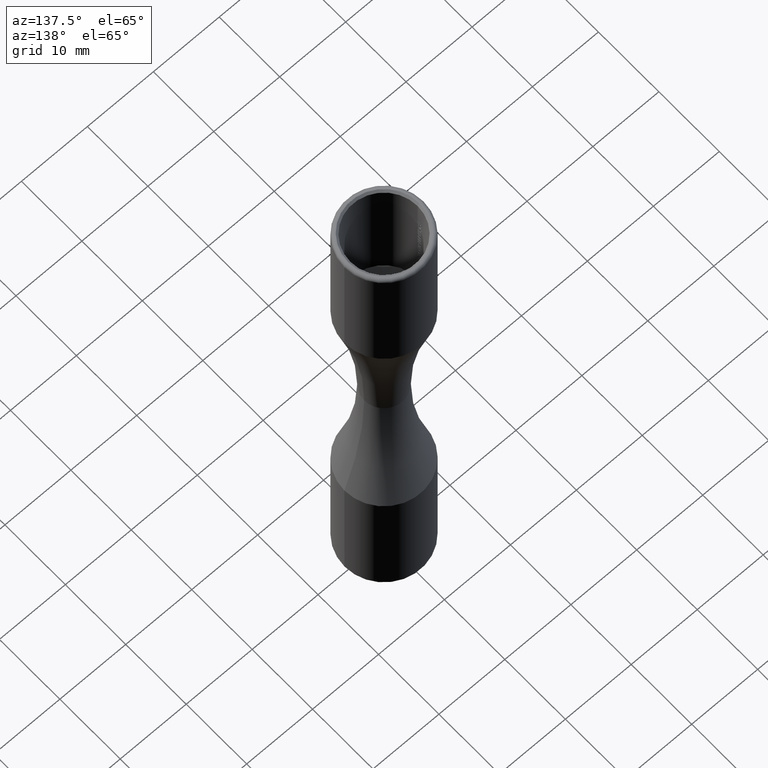
[diagram: clean part render]
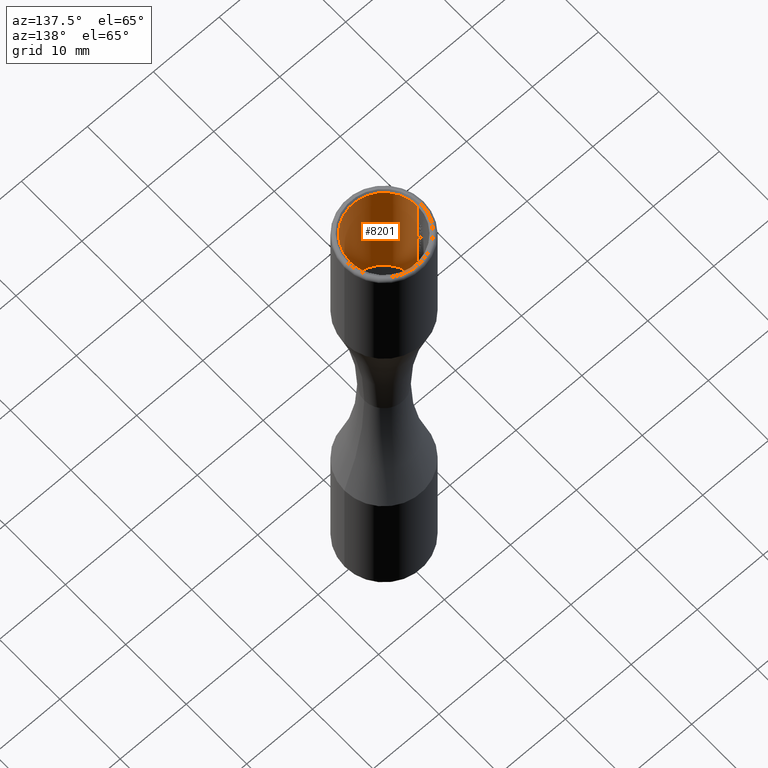
[diagram: same view with one face highlighted and labeled with its STEP entity id]
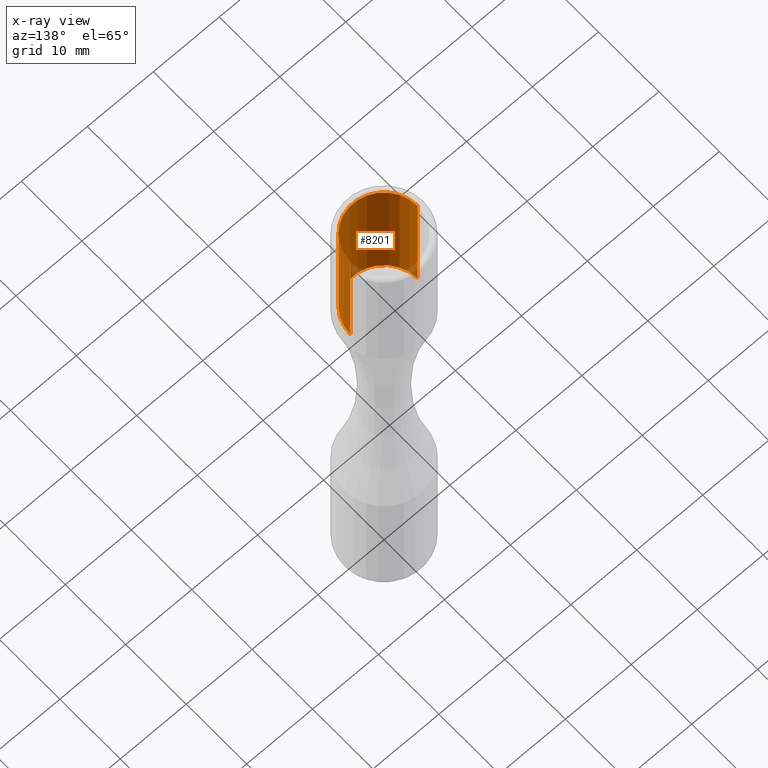
[diagram: x-ray of the same camera — body ghosted, the highlighted face saturated]
A machine part, auxiliary view. The second image highlights one B-rep face of the part: STEP entity #8201.
The next image is the same camera in x-ray: the body ghosted, the highlighted face saturated — about 3% of this face is hidden behind the body in this view.
In plain terms, the highlighted cylindrical surface (partial cylindrical patch) has radius 5.1 mm, axis along (-0, -0, -1).
Its self-contained STEP definition (entity closure, byte-faithful):
#50 = VERTEX_POINT ( 'NONE', #12882 ) ;
#70 = EDGE_CURVE ( 'NONE', #8140, #9770, #12805, .T. ) ;
#87 = ORIENTED_EDGE ( 'NONE', *, *, #4688, .T. ) ;
#102 = VERTEX_POINT ( 'NONE', #2305 ) ;
#127 = ORIENTED_EDGE ( 'NONE', *, *, #1081, .T. ) ;
#153 = ORIENTED_EDGE ( 'NONE', *, *, #251, .F. ) ;
#163 = CARTESIAN_POINT ( 'NONE',  ( 5.099999999999998757, -3.712238822376867849E-15, 39.70384577461581443 ) ) ;
#208 = ORIENTED_EDGE ( 'NONE', *, *, #8302, .T. ) ;
#213 = DIRECTION ( 'NONE',  ( -0.000000000000000000, -0.000000000000000000, -1.000000000000000000 ) ) ;
#217 = CARTESIAN_POINT ( 'NONE',  ( -5.099989847370640206, -0.01017628205128205329, 34.82124736716390601 ) ) ;
#251 = EDGE_CURVE ( 'NONE', #10592, #418, #2447, .T. ) ;
#284 = CARTESIAN_POINT ( 'NONE',  ( -5.099999999999997868, -0.01406212034365020291, 29.84169774693276622 ) ) ;
#373 = VECTOR ( 'NONE', #8218, 1000.000000000000000 ) ;
#375 = EDGE_CURVE ( 'NONE', #5786, #8140, #11714, .T. ) ;
#408 = CARTESIAN_POINT ( 'NONE',  ( -5.099999999999998757, -0.01322823460821048042, 25.05239048809283275 ) ) ;
#418 = VERTEX_POINT ( 'NONE', #1965 ) ;
#437 = ORIENTED_EDGE ( 'NONE', *, *, #9991, .F. ) ;
#451 = EDGE_CURVE ( 'NONE', #4348, #6367, #11434, .T. ) ;
#464 = ORIENTED_EDGE ( 'NONE', *, *, #12894, .T. ) ;
#486 = VERTEX_POINT ( 'NONE', #2320 ) ;
#508 = CARTESIAN_POINT ( 'NONE',  ( -5.099991187069258913, -0.009504872854565997106, 34.85000877338627845 ) ) ;
#518 = VECTOR ( 'NONE', #8897, 1000.000000000000000 ) ;
#535 = EDGE_CURVE ( 'NONE', #1542, #6367, #5367, .T. ) ;
#540 = CIRCLE ( 'NONE', #2431, 5.099999999999999645 ) ;
#551 = VERTEX_POINT ( 'NONE', #4716 ) ;
#557 = CARTESIAN_POINT ( 'NONE',  ( -5.099999999999997868, -0.01385719968823547268, 29.21539700328661127 ) ) ;
#559 = CARTESIAN_POINT ( 'NONE',  ( -5.099999999999998757, 0.000000000000000000, 31.18497558230813027 ) ) ;
#578 = CARTESIAN_POINT ( 'NONE',  ( -5.099962878056707005, -0.01947836442769352097, 27.35550670847737109 ) ) ;
#610 = CARTESIAN_POINT ( 'NONE',  ( -5.099989847370640206, -0.01017628205128205156, 33.87437612317351920 ) ) ;
#619 = CARTESIAN_POINT ( 'NONE',  ( -5.099999999999998757, -3.338601537426506144E-14, 32.01076392866190901 ) ) ;
#649 = VERTEX_POINT ( 'NONE', #1744 ) ;
#654 = ORIENTED_EDGE ( 'NONE', *, *, #10767, .F. ) ;
#705 = EDGE_CURVE ( 'NONE', #2140, #3022, #2911, .T. ) ;
#715 = CARTESIAN_POINT ( 'NONE',  ( -5.099961332391190538, -0.01986567834546732608, 25.08566958099810051 ) ) ;
#729 = ORIENTED_EDGE ( 'NONE', *, *, #10345, .F. ) ;
#771 = CARTESIAN_POINT ( 'NONE',  ( -5.099999999999998757, -4.336808689942017736E-15, -17.43945661757529564 ) ) ;
#796 = ORIENTED_EDGE ( 'NONE', *, *, #4240, .T. ) ;
#832 = EDGE_CURVE ( 'NONE', #896, #12253, #7384, .T. ) ;
#850 = CARTESIAN_POINT ( 'NONE',  ( -5.099999999999998757, -4.092056402250519517E-13, 25.21546793055991742 ) ) ;
#896 = VERTEX_POINT ( 'NONE', #3369 ) ;
#903 = CARTESIAN_POINT ( 'NONE',  ( -5.099999999999998757, 0.000000000000000000, 31.85661019769275981 ) ) ;
#914 = VECTOR ( 'NONE', #213, 1000.000000000000000 ) ;
#931 = ORIENTED_EDGE ( 'NONE', *, *, #2373, .F. ) ;
#953 = CARTESIAN_POINT ( 'NONE',  ( -5.099999999999998757, -3.534689664715876672E-14, 27.42786175103734081 ) ) ;
#1023 = CARTESIAN_POINT ( 'NONE',  ( -5.099999999999998757, -3.375320415689980064E-14, 33.79161328763624539 ) ) ;
#1045 = VERTEX_POINT ( 'NONE', #5447 ) ;
#1069 = VERTEX_POINT ( 'NONE', #9585 ) ;
#1081 = EDGE_CURVE ( 'NONE', #7924, #7248, #9802, .T. ) ;
#1087 = CARTESIAN_POINT ( 'NONE',  ( -5.099999999999998757, -4.336808689942017736E-15, -17.43945661757529564 ) ) ;
#1092 = ORIENTED_EDGE ( 'NONE', *, *, #5707, .T. ) ;
#1123 = ORIENTED_EDGE ( 'NONE', *, *, #6441, .T. ) ;
#1141 = CARTESIAN_POINT ( 'NONE',  ( -5.099999999999998757, -4.665616292154296449E-15, 29.66041436574894874 ) ) ;
#1164 = B_SPLINE_CURVE_WITH_KNOTS ( 'NONE', 3,
 ( #4664, #6708, #6794, #850 ),
 .UNSPECIFIED., .F., .F.,
 ( 4, 4 ),
 ( 3.515829600942801332E-18, 9.871166178141249051E-05 ),
 .UNSPECIFIED. ) ;
#1279 = DIRECTION ( 'NONE',  ( -0.000000000000000000, -0.000000000000000000, -1.000000000000000000 ) ) ;
#1289 = ORIENTED_EDGE ( 'NONE', *, *, #9901, .T. ) ;
#1301 = CARTESIAN_POINT ( 'NONE',  ( -5.099959389361295337, -0.02035256410256410312, 29.77253943447159656 ) ) ;
#1339 = CARTESIAN_POINT ( 'NONE',  ( -5.099999999999998757, -4.522203026272302723E-15, 27.81663995036078774 ) ) ;
#1340 = EDGE_CURVE ( 'NONE', #8568, #11335, #2736, .T. ) ;
#1377 = CIRCLE ( 'NONE', #6615, 5.099999999999998757 ) ;
#1442 = VERTEX_POINT ( 'NONE', #4683 ) ;
#1451 = CARTESIAN_POINT ( 'NONE',  ( -5.099999999999998757, -4.336808689942017736E-15, -17.43945661757529564 ) ) ;
#1457 = VERTEX_POINT ( 'NONE', #8776 ) ;
#1469 = LINE ( 'NONE', #5783, #10470 ) ;
#1481 = LINE ( 'NONE', #5545, #12814 ) ;
#1526 = LINE ( 'NONE', #11298, #6952 ) ;
#1542 = VERTEX_POINT ( 'NONE', #10154 ) ;
#1551 = VERTEX_POINT ( 'NONE', #903 ) ;
#1570 = CARTESIAN_POINT ( 'NONE',  ( -5.099999999999998757, -4.118791938439417440E-13, 29.24527562286761295 ) ) ;
#1583 = VERTEX_POINT ( 'NONE', #12150 ) ;
#1605 = B_SPLINE_CURVE_WITH_KNOTS ( 'NONE', 3,
 ( #11343, #7219, #3235, #217 ),
 .UNSPECIFIED., .F., .F.,
 ( 4, 4 ),
 ( 0.0002402295244590736158, 0.0003256168707658244434 ),
 .UNSPECIFIED. ) ;
#1614 = VERTEX_POINT ( 'NONE', #8195 ) ;
#1683 = CARTESIAN_POINT ( 'NONE',  ( -5.099999999999998757, 0.000000000000000000, 31.62255571051325731 ) ) ;
#1694 = LINE ( 'NONE', #8750, #1840 ) ;
#1702 = VERTEX_POINT ( 'NONE', #10507 ) ;
#1744 = CARTESIAN_POINT ( 'NONE',  ( -5.099999999999998757, 0.000000000000000000, 28.42720314641069379 ) ) ;
#1767 = LINE ( 'NONE', #2784, #7181 ) ;
#1840 = VECTOR ( 'NONE', #11768, 1000.000000000000000 ) ;
#1893 = VECTOR ( 'NONE', #7625, 1000.000000000000000 ) ;
#1905 = VECTOR ( 'NONE', #7171, 1000.000000000000000 ) ;
#1906 = DIRECTION ( 'NONE',  ( 0.000000000000000000, 0.000000000000000000, 1.000000000000000000 ) ) ;
#1922 = VERTEX_POINT ( 'NONE', #4924 ) ;
#1943 = CARTESIAN_POINT ( 'NONE',  ( -5.099999999999998757, 0.000000000000000000, -17.43945661757529564 ) ) ;
#1965 = CARTESIAN_POINT ( 'NONE',  ( -5.099999999999998757, 0.000000000000000000, 30.95092109512864909 ) ) ;
#1985 = LINE ( 'NONE', #9720, #11614 ) ;
#2005 = DIRECTION ( 'NONE',  ( -1.000000000000000000, 0.000000000000000000, 0.000000000000000000 ) ) ;
#2029 = EDGE_CURVE ( 'NONE', #102, #12179, #12888, .T. ) ;
#2043 = CARTESIAN_POINT ( 'NONE',  ( -5.099999999999998757, -3.683650996402386066E-14, 28.03843867411425350 ) ) ;
#2049 = EDGE_CURVE ( 'NONE', #6273, #1442, #12516, .T. ) ;
#2087 = CARTESIAN_POINT ( 'NONE',  ( -5.099962878056707005, -0.01947836442769283402, 27.96608363155428734 ) ) ;
#2124 = EDGE_CURVE ( 'NONE', #6434, #2140, #8808, .T. ) ;
#2135 = DIRECTION ( 'NONE',  ( -0.000000000000000000, -0.000000000000000000, -1.000000000000000000 ) ) ;
#2140 = VERTEX_POINT ( 'NONE', #12266 ) ;
#2159 = ORIENTED_EDGE ( 'NONE', *, *, #832, .F. ) ;
#2225 = CARTESIAN_POINT ( 'NONE',  ( -5.099999999999998757, 0.000000000000000000, -17.43945661757529564 ) ) ;
#2226 = EDGE_CURVE ( 'NONE', #11618, #9770, #11102, .T. ) ;
#2262 = CARTESIAN_POINT ( 'NONE',  ( -5.099962124805888841, -0.01966711453125236098, 29.80714160279507041 ) ) ;
#2305 = CARTESIAN_POINT ( 'NONE',  ( -5.099999999999998757, -3.375320415689980064E-14, 33.79161328763624539 ) ) ;
#2320 = CARTESIAN_POINT ( 'NONE',  ( -5.099999999999999645, -4.336808689942017736E-15, 20.50384577461582936 ) ) ;
#2349 = CARTESIAN_POINT ( 'NONE',  ( -5.099999999999998757, -6.272278974418094011E-15, 25.02226261308351241 ) ) ;
#2369 = ORIENTED_EDGE ( 'NONE', *, *, #705, .T. ) ;
#2371 = VERTEX_POINT ( 'NONE', #12343 ) ;
#2373 = EDGE_CURVE ( 'NONE', #9510, #1551, #6133, .T. ) ;
#2398 = EDGE_CURVE ( 'NONE', #2477, #486, #5834, .T. ) ;
#2431 = AXIS2_PLACEMENT_3D ( 'NONE', #3946, #2918, #2005 ) ;
#2447 = LINE ( 'NONE', #12813, #12686 ) ;
#2477 = VERTEX_POINT ( 'NONE', #4727 ) ;
#2533 = EDGE_CURVE ( 'NONE', #50, #486, #540, .T. ) ;
#2568 = CARTESIAN_POINT ( 'NONE',  ( -5.099991328488218123, -0.009433998713176405815, 32.12086546093063788 ) ) ;
#2614 = ORIENTED_EDGE ( 'NONE', *, *, #4100, .T. ) ;
#2623 = EDGE_CURVE ( 'NONE', #10603, #6715, #1164, .T. ) ;
#2663 = FACE_OUTER_BOUND ( 'NONE', #11210, .T. ) ;
#2736 = LINE ( 'NONE', #12426, #7699 ) ;
#2784 = CARTESIAN_POINT ( 'NONE',  ( -5.099999999999998757, 0.000000000000000000, -17.43945661757529564 ) ) ;
#2807 = ORIENTED_EDGE ( 'NONE', *, *, #2398, .F. ) ;
#2820 = LINE ( 'NONE', #4670, #1893 ) ;
#2834 = DIRECTION ( 'NONE',  ( -0.000000000000000000, -0.000000000000000000, -1.000000000000000000 ) ) ;
#2870 = CARTESIAN_POINT ( 'NONE',  ( -5.099999999999998757, -3.683650996402386066E-14, 28.03843867411425350 ) ) ;
#2911 = B_SPLINE_CURVE_WITH_KNOTS ( 'NONE', 3,
 ( #10010, #2087, #3169, #2043 ),
 .UNSPECIFIED., .F., .F.,
 ( 4, 4 ),
 ( 0.000000000000000000, 0.0001119635597061053277 ),
 .UNSPECIFIED. ) ;
#2918 = DIRECTION ( 'NONE',  ( -0.000000000000000000, -0.000000000000000000, -1.000000000000000000 ) ) ;
#2931 = VECTOR ( 'NONE', #10714, 1000.000000000000000 ) ;
#2969 = VECTOR ( 'NONE', #9856, 1000.000000000000000 ) ;
#3022 = VERTEX_POINT ( 'NONE', #2870 ) ;
#3027 = EDGE_CURVE ( 'NONE', #11618, #12253, #9402, .T. ) ;
#3081 = ORIENTED_EDGE ( 'NONE', *, *, #3848, .F. ) ;
#3088 = LINE ( 'NONE', #771, #2931 ) ;
#3169 = CARTESIAN_POINT ( 'NONE',  ( -5.100000000000000533, -0.01429892895878439284, 28.00357198385493263 ) ) ;
#3196 = CARTESIAN_POINT ( 'NONE',  ( -5.099999999999998757, 0.000000000000000000, 32.93529609512864909 ) ) ;
#3235 = CARTESIAN_POINT ( 'NONE',  ( -5.099991021346980347, -0.009587926953832362140, 34.79213669842108203 ) ) ;
#3236 = EDGE_CURVE ( 'NONE', #7419, #3022, #6906, .T. ) ;
#3363 = CARTESIAN_POINT ( 'NONE',  ( -5.099963776847036279, -0.01925314493377017211, 27.89025265176601920 ) ) ;
#3369 = CARTESIAN_POINT ( 'NONE',  ( -5.099999999999998757, 0.000000000000000000, 30.87968712076967392 ) ) ;
#3405 = EDGE_CURVE ( 'NONE', #1922, #1583, #11865, .T. ) ;
#3438 = CARTESIAN_POINT ( 'NONE',  ( -5.099959389361295337, -0.02035256410256410312, 29.77253943447159656 ) ) ;
#3485 = DIRECTION ( 'NONE',  ( -0.000000000000000000, -0.000000000000000000, -1.000000000000000000 ) ) ;
#3522 = ORIENTED_EDGE ( 'NONE', *, *, #3027, .T. ) ;
#3535 = CARTESIAN_POINT ( 'NONE',  ( -5.100000000000008527, -0.006886554496304616788, 32.14790045596746637 ) ) ;
#3536 = CARTESIAN_POINT ( 'NONE',  ( -5.099999999999998757, -4.336808689942017736E-15, -17.43945661757529564 ) ) ;
#3538 = CARTESIAN_POINT ( 'NONE',  ( -5.099999999999998757, -4.336808689942017736E-15, -17.43945661757529564 ) ) ;
#3557 = LINE ( 'NONE', #12069, #914 ) ;
#3627 = CARTESIAN_POINT ( 'NONE',  ( -5.100000000000008527, -0.006886554496299408280, 33.92874981494185249 ) ) ;
#3703 = CARTESIAN_POINT ( 'NONE',  ( -5.099999999999998757, 0.000000000000000000, -17.43945661757529564 ) ) ;
#3714 = ORIENTED_EDGE ( 'NONE', *, *, #4976, .F. ) ;
#3775 = CARTESIAN_POINT ( 'NONE',  ( -5.099999999999998757, 0.000000000000000000, 34.31927045410300536 ) ) ;
#3814 = EDGE_CURVE ( 'NONE', #1457, #649, #12656, .T. ) ;
#3815 = DIRECTION ( 'NONE',  ( 0.000000000000000000, 0.000000000000000000, 1.000000000000000000 ) ) ;
#3832 = CARTESIAN_POINT ( 'NONE',  ( -5.099999999999998757, 0.000000000000000000, 30.44210699256454689 ) ) ;
#3848 = EDGE_CURVE ( 'NONE', #102, #2371, #1481, .T. ) ;
#3888 = ORIENTED_EDGE ( 'NONE', *, *, #6282, .T. ) ;
#3909 = CARTESIAN_POINT ( 'NONE',  ( -5.099999999999998757, 0.000000000000000000, -17.43945661757529564 ) ) ;
#3942 = CARTESIAN_POINT ( 'NONE',  ( -5.099959389361295337, -0.02035256410256410312, 27.31782939841390956 ) ) ;
#3946 = CARTESIAN_POINT ( 'NONE',  ( 0.000000000000000000, -4.336808689942017736E-15, 20.50384577461582936 ) ) ;
#3964 = CARTESIAN_POINT ( 'NONE',  ( -5.099999999999998757, 0.000000000000000000, 30.51334096692352205 ) ) ;
#3987 = CARTESIAN_POINT ( 'NONE',  ( -5.099999999999998757, -4.665616292154296449E-15, 29.66041436574894874 ) ) ;
#3998 = LINE ( 'NONE', #3909, #12236 ) ;
#4077 = CARTESIAN_POINT ( 'NONE',  ( -5.099999999999998757, -4.092056402250519517E-13, 25.21546793055991742 ) ) ;
#4083 = VECTOR ( 'NONE', #8614, 1000.000000000000000 ) ;
#4100 = EDGE_CURVE ( 'NONE', #2477, #10603, #10828, .T. ) ;
#4105 = CARTESIAN_POINT ( 'NONE',  ( -5.099999999999998757, -4.336808689942017736E-15, -17.43945661757529564 ) ) ;
#4138 = DIRECTION ( 'NONE',  ( -0.000000000000000000, -0.000000000000000000, -1.000000000000000000 ) ) ;
#4141 = ORIENTED_EDGE ( 'NONE', *, *, #535, .T. ) ;
#4169 = ORIENTED_EDGE ( 'NONE', *, *, #10667, .T. ) ;
#4240 = EDGE_CURVE ( 'NONE', #6876, #1551, #10629, .T. ) ;
#4293 = B_SPLINE_CURVE_WITH_KNOTS ( 'NONE', 3,
 ( #8030, #2568, #3535, #9538 ),
 .UNSPECIFIED., .F., .F.,
 ( 4, 4 ),
 ( 0.000000000000000000, 8.124888950308669841E-05 ),
 .UNSPECIFIED. ) ;
#4348 = VERTEX_POINT ( 'NONE', #3196 ) ;
#4361 = ORIENTED_EDGE ( 'NONE', *, *, #8174, .T. ) ;
#4379 = B_SPLINE_CURVE_WITH_KNOTS ( 'NONE', 3,
 ( #9619, #578, #8535, #6652 ),
 .UNSPECIFIED., .F., .F.,
 ( 4, 4 ),
 ( 0.000000000000000000, 0.0001119635597061080788 ),
 .UNSPECIFIED. ) ;
#4423 = CARTESIAN_POINT ( 'NONE',  ( -5.099999999999998757, 0.000000000000000000, -17.43945661757529564 ) ) ;
#4554 = DIRECTION ( 'NONE',  ( 1.000000000000000000, 0.000000000000000000, 0.000000000000000000 ) ) ;
#4617 = CARTESIAN_POINT ( 'NONE',  ( -5.099999999999998757, -0.01395745281740641552, 27.24131568768905609 ) ) ;
#4627 = CARTESIAN_POINT ( 'NONE',  ( -5.099959389361295337, -0.02035256410256410312, 29.14892415001647308 ) ) ;
#4664 = CARTESIAN_POINT ( 'NONE',  ( -5.099959389361295337, -0.02035256410256410659, 25.11911645770877399 ) ) ;
#4667 = ORIENTED_EDGE ( 'NONE', *, *, #2623, .T. ) ;
#4670 = CARTESIAN_POINT ( 'NONE',  ( -5.099999999999998757, -4.336808689942017736E-15, -17.43945661757529564 ) ) ;
#4683 = CARTESIAN_POINT ( 'NONE',  ( -5.099999999999998757, 6.922346268249668366E-12, 33.95505479578784502 ) ) ;
#4685 = VECTOR ( 'NONE', #6611, 1000.000000000000000 ) ;
#4688 = EDGE_CURVE ( 'NONE', #4348, #11335, #1469, .T. ) ;
#4716 = CARTESIAN_POINT ( 'NONE',  ( -5.099999999999998757, 6.902951013702557804E-12, 32.17420543681343048 ) ) ;
#4724 = EDGE_CURVE ( 'NONE', #5786, #10321, #9839, .T. ) ;
#4727 = CARTESIAN_POINT ( 'NONE',  ( -5.099999999999998757, -6.272278974418094011E-15, 25.02226261308351241 ) ) ;
#4743 = EDGE_CURVE ( 'NONE', #9484, #9744, #7816, .T. ) ;
#4766 = CARTESIAN_POINT ( 'NONE',  ( -5.099999999999998757, -4.336808689942017736E-15, -17.43945661757529564 ) ) ;
#4770 = DIRECTION ( 'NONE',  ( -0.000000000000000000, -0.000000000000000000, -1.000000000000000000 ) ) ;
#4784 = EDGE_CURVE ( 'NONE', #6434, #8423, #6113, .T. ) ;
#4924 = CARTESIAN_POINT ( 'NONE',  ( -5.099999999999998757, -6.848979371322714269E-14, 34.73524293501333204 ) ) ;
#4944 = CARTESIAN_POINT ( 'NONE',  ( -5.099960777870729878, -0.02000463046162415451, 29.73413684665024803 ) ) ;
#4951 = CARTESIAN_POINT ( 'NONE',  ( -5.099989847370640206, -0.01017628205128205156, 32.09352676419917572 ) ) ;
#4976 = EDGE_CURVE ( 'NONE', #6876, #7865, #12485, .T. ) ;
#4983 = VECTOR ( 'NONE', #1279, 1000.000000000000000 ) ;
#5006 = LINE ( 'NONE', #12104, #7951 ) ;
#5261 = VERTEX_POINT ( 'NONE', #559 ) ;
#5278 = VECTOR ( 'NONE', #11615, 1000.000000000000000 ) ;
#5320 = CARTESIAN_POINT ( 'NONE',  ( -5.099989847370640206, -0.01017628205128205329, 34.82124736716390601 ) ) ;
#5342 = CARTESIAN_POINT ( 'NONE',  ( -5.099959389361295337, -0.02035256410256410659, 25.11911645770877399 ) ) ;
#5367 = LINE ( 'NONE', #12629, #10031 ) ;
#5447 = CARTESIAN_POINT ( 'NONE',  ( -5.099999999999998757, 0.000000000000000000, 33.40340506948761856 ) ) ;
#5450 = CARTESIAN_POINT ( 'NONE',  ( -5.100000000000007638, -0.007160943429813001505, 34.87845656363759161 ) ) ;
#5500 = CARTESIAN_POINT ( 'NONE',  ( -5.099961332391194979, -0.01986567834546733649, 29.11547727330580315 ) ) ;
#5525 = CARTESIAN_POINT ( 'NONE',  ( -5.099999999999998757, -4.118791938439417440E-13, 29.24527562286761295 ) ) ;
#5545 = CARTESIAN_POINT ( 'NONE',  ( -5.099999999999998757, -4.336808689942017736E-15, -17.43945661757529564 ) ) ;
#5549 = B_SPLINE_CURVE_WITH_KNOTS ( 'NONE', 3,
 ( #9594, #12544, #557, #1570 ),
 .UNSPECIFIED., .F., .F.,
 ( 4, 4 ),
 ( 0.000000000000000000, 9.871166178140648674E-05 ),
 .UNSPECIFIED. ) ;
#5556 = CARTESIAN_POINT ( 'NONE',  ( -5.099999999999998757, -4.336808689942017736E-15, -17.43945661757529564 ) ) ;
#5697 = CARTESIAN_POINT ( 'NONE',  ( -5.099999999999998757, 0.000000000000000000, -17.43945661757529564 ) ) ;
#5707 = EDGE_CURVE ( 'NONE', #6273, #1583, #5006, .T. ) ;
#5747 = B_SPLINE_CURVE_WITH_KNOTS ( 'NONE', 3,
 ( #5320, #508, #5450, #12321 ),
 .UNSPECIFIED., .F., .F.,
 ( 4, 4 ),
 ( 7.051828826660227737E-18, 8.517740641063842029E-05 ),
 .UNSPECIFIED. ) ;
#5781 = LINE ( 'NONE', #9249, #1905 ) ;
#5783 = CARTESIAN_POINT ( 'NONE',  ( -5.099999999999998757, 0.000000000000000000, -17.43945661757529564 ) ) ;
#5786 = VERTEX_POINT ( 'NONE', #1141 ) ;
#5827 = VECTOR ( 'NONE', #10494, 1000.000000000000000 ) ;
#5834 = LINE ( 'NONE', #5556, #6137 ) ;
#5915 = EDGE_CURVE ( 'NONE', #8568, #1045, #1767, .T. ) ;
#6060 = EDGE_CURVE ( 'NONE', #11606, #551, #4293, .T. ) ;
#6093 = ORIENTED_EDGE ( 'NONE', *, *, #6847, .T. ) ;
#6113 = LINE ( 'NONE', #7855, #518 ) ;
#6133 = LINE ( 'NONE', #7385, #6755 ) ;
#6137 = VECTOR ( 'NONE', #10481, 1000.000000000000000 ) ;
#6207 = ORIENTED_EDGE ( 'NONE', *, *, #2049, .F. ) ;
#6212 = B_SPLINE_CURVE_WITH_KNOTS ( 'NONE', 3,
 ( #9289, #12672, #5500, #4627 ),
 .UNSPECIFIED., .F., .F.,
 ( 4, 4 ),
 ( 0.0004563688399558152612, 0.0005541700381686499779 ),
 .UNSPECIFIED. ) ;
#6273 = VERTEX_POINT ( 'NONE', #3775 ) ;
#6282 = EDGE_CURVE ( 'NONE', #1457, #1614, #6212, .T. ) ;
#6298 = CARTESIAN_POINT ( 'NONE',  ( -5.099999999999998757, 0.000000000000000000, 31.78537622333378465 ) ) ;
#6309 = CARTESIAN_POINT ( 'NONE',  ( -5.099999999999998757, 0.000000000000000000, 32.60965506948762282 ) ) ;
#6367 = VERTEX_POINT ( 'NONE', #6309 ) ;
#6373 = CARTESIAN_POINT ( 'NONE',  ( -5.099999999999998757, 0.000000000000000000, 33.33217109512865051 ) ) ;
#6396 = ORIENTED_EDGE ( 'NONE', *, *, #4724, .F. ) ;
#6397 = CARTESIAN_POINT ( 'NONE',  ( -5.099999999999998757, 0.000000000000000000, 31.11374160794915511 ) ) ;
#6431 = EDGE_CURVE ( 'NONE', #12179, #1442, #7467, .T. ) ;
#6434 = VERTEX_POINT ( 'NONE', #7653 ) ;
#6441 = EDGE_CURVE ( 'NONE', #1702, #6576, #7329, .T. ) ;
#6462 = CARTESIAN_POINT ( 'NONE',  ( -5.099989847370640206, -0.01017628205128205329, 34.82124736716390601 ) ) ;
#6472 = DIRECTION ( 'NONE',  ( -0.000000000000000000, -0.000000000000000000, -1.000000000000000000 ) ) ;
#6487 = EDGE_CURVE ( 'NONE', #7248, #8423, #4379, .T. ) ;
#6518 = CARTESIAN_POINT ( 'NONE',  ( 0.000000000000000000, -4.336808689942017736E-15, 39.70384577461581443 ) ) ;
#6553 = VERTEX_POINT ( 'NONE', #9574 ) ;
#6576 = VERTEX_POINT ( 'NONE', #7860 ) ;
#6598 = DIRECTION ( 'NONE',  ( -0.000000000000000000, -0.000000000000000000, -1.000000000000000000 ) ) ;
#6608 = VECTOR ( 'NONE', #7109, 1000.000000000000000 ) ;
#6611 = DIRECTION ( 'NONE',  ( 0.000000000000000000, 0.000000000000000000, 1.000000000000000000 ) ) ;
#6615 = AXIS2_PLACEMENT_3D ( 'NONE', #6518, #7470, #4554 ) ;
#6652 = CARTESIAN_POINT ( 'NONE',  ( -5.099999999999998757, -3.534689664715876672E-14, 27.42786175103734081 ) ) ;
#6666 = EDGE_CURVE ( 'NONE', #9510, #11606, #10293, .T. ) ;
#6681 = VERTEX_POINT ( 'NONE', #163 ) ;
#6708 = CARTESIAN_POINT ( 'NONE',  ( -5.099961632858343918, -0.01979038708251021350, 25.15239235970221543 ) ) ;
#6715 = VERTEX_POINT ( 'NONE', #4077 ) ;
#6755 = VECTOR ( 'NONE', #3485, 1000.000000000000000 ) ;
#6794 = CARTESIAN_POINT ( 'NONE',  ( -5.099999999999997868, -0.01385719968824164310, 25.18558931097890863 ) ) ;
#6796 = ORIENTED_EDGE ( 'NONE', *, *, #4784, .F. ) ;
#6840 = EDGE_CURVE ( 'NONE', #10715, #1045, #12605, .T. ) ;
#6847 = EDGE_CURVE ( 'NONE', #8283, #9744, #5781, .T. ) ;
#6876 = VERTEX_POINT ( 'NONE', #6298 ) ;
#6906 = LINE ( 'NONE', #9173, #373 ) ;
#6952 = VECTOR ( 'NONE', #8268, 1000.000000000000000 ) ;
#7030 = CARTESIAN_POINT ( 'NONE',  ( -5.099999999999998757, -3.191204040318865003E-13, 29.87310359106416868 ) ) ;
#7032 = CARTESIAN_POINT ( 'NONE',  ( -5.099999999999998757, -0.01405309050992871282, 29.69589164135402370 ) ) ;
#7035 = DIRECTION ( 'NONE',  ( 0.000000000000000000, 0.000000000000000000, 1.000000000000000000 ) ) ;
#7050 = VECTOR ( 'NONE', #10676, 1000.000000000000000 ) ;
#7055 = DIRECTION ( 'NONE',  ( -0.000000000000000000, -0.000000000000000000, -1.000000000000000000 ) ) ;
#7086 = ORIENTED_EDGE ( 'NONE', *, *, #8435, .F. ) ;
#7097 = CARTESIAN_POINT ( 'NONE',  ( -5.099999999999998757, -3.191204040318865003E-13, 29.87310359106416868 ) ) ;
#7101 = DIRECTION ( 'NONE',  ( -0.000000000000000000, -0.000000000000000000, -1.000000000000000000 ) ) ;
#7109 = DIRECTION ( 'NONE',  ( 0.000000000000000000, 0.000000000000000000, 1.000000000000000000 ) ) ;
#7171 = DIRECTION ( 'NONE',  ( 0.000000000000000000, 0.000000000000000000, 1.000000000000000000 ) ) ;
#7181 = VECTOR ( 'NONE', #12676, 1000.000000000000000 ) ;
#7211 = CARTESIAN_POINT ( 'NONE',  ( -5.099999999999998757, -4.336808689942017736E-15, -17.43945661757529564 ) ) ;
#7219 = CARTESIAN_POINT ( 'NONE',  ( -5.100000000000000533, -0.007223709737925737909, 34.76323521520581750 ) ) ;
#7248 = VERTEX_POINT ( 'NONE', #3942 ) ;
#7271 = ORIENTED_EDGE ( 'NONE', *, *, #6487, .T. ) ;
#7313 = CARTESIAN_POINT ( 'NONE',  ( -5.099999999999998757, -0.01395745281741036029, 27.85189261076596523 ) ) ;
#7329 = LINE ( 'NONE', #3703, #4685 ) ;
#7384 = LINE ( 'NONE', #4105, #8788 ) ;
#7385 = CARTESIAN_POINT ( 'NONE',  ( -5.099999999999998757, -4.336808689942017736E-15, -17.43945661757529564 ) ) ;
#7419 = VERTEX_POINT ( 'NONE', #9462 ) ;
#7453 = ORIENTED_EDGE ( 'NONE', *, *, #11870, .T. ) ;
#7457 = LINE ( 'NONE', #4423, #7765 ) ;
#7467 = B_SPLINE_CURVE_WITH_KNOTS ( 'NONE', 3,
 ( #10616, #12526, #3627, #11476 ),
 .UNSPECIFIED., .F., .F.,
 ( 4, 4 ),
 ( 0.000000000000000000, 8.124888950315479986E-05 ),
 .UNSPECIFIED. ) ;
#7470 = DIRECTION ( 'NONE',  ( -0.000000000000000000, -0.000000000000000000, 1.000000000000000000 ) ) ;
#7517 = EDGE_CURVE ( 'NONE', #6553, #6576, #2820, .T. ) ;
#7523 = CARTESIAN_POINT ( 'NONE',  ( -5.099999999999998757, 0.000000000000000000, 26.06630571051326584 ) ) ;
#7625 = DIRECTION ( 'NONE',  ( -0.000000000000000000, -0.000000000000000000, -1.000000000000000000 ) ) ;
#7653 = CARTESIAN_POINT ( 'NONE',  ( -5.099999999999998757, -4.522203026272302723E-15, 27.81663995036078774 ) ) ;
#7657 = DIRECTION ( 'NONE',  ( -0.000000000000000000, -0.000000000000000000, -1.000000000000000000 ) ) ;
#7699 = VECTOR ( 'NONE', #6472, 1000.000000000000000 ) ;
#7730 = VECTOR ( 'NONE', #9776, 1000.000000000000000 ) ;
#7765 = VECTOR ( 'NONE', #9345, 1000.000000000000000 ) ;
#7773 = ORIENTED_EDGE ( 'NONE', *, *, #12684, .F. ) ;
#7816 = LINE ( 'NONE', #4766, #4083 ) ;
#7832 = ORIENTED_EDGE ( 'NONE', *, *, #451, .F. ) ;
#7855 = CARTESIAN_POINT ( 'NONE',  ( -5.099999999999998757, -4.336808689942017736E-15, -17.43945661757529564 ) ) ;
#7860 = CARTESIAN_POINT ( 'NONE',  ( -5.099999999999998757, 0.000000000000000000, 35.60148199256455115 ) ) ;
#7865 = VERTEX_POINT ( 'NONE', #1683 ) ;
#7901 = VERTEX_POINT ( 'NONE', #8580 ) ;
#7924 = VERTEX_POINT ( 'NONE', #9734 ) ;
#7937 = EDGE_CURVE ( 'NONE', #896, #418, #9001, .T. ) ;
#7951 = VECTOR ( 'NONE', #12119, 1000.000000000000000 ) ;
#7983 = ORIENTED_EDGE ( 'NONE', *, *, #10817, .T. ) ;
#7984 = DIRECTION ( 'NONE',  ( -0.000000000000000000, -0.000000000000000000, -1.000000000000000000 ) ) ;
#8030 = CARTESIAN_POINT ( 'NONE',  ( -5.099989847370640206, -0.01017628205128205156, 32.09352676419917572 ) ) ;
#8095 = CARTESIAN_POINT ( 'NONE',  ( -5.099991151246380916, -0.009522826004299480770, 33.84633250409174821 ) ) ;
#8140 = VERTEX_POINT ( 'NONE', #3438 ) ;
#8174 = EDGE_CURVE ( 'NONE', #10715, #2371, #7457, .T. ) ;
#8186 = CARTESIAN_POINT ( 'NONE',  ( -5.099999999999998757, -4.336808689942017736E-15, -17.43945661757529564 ) ) ;
#8195 = CARTESIAN_POINT ( 'NONE',  ( -5.099959389361295337, -0.02035256410256410312, 29.14892415001647308 ) ) ;
#8201 = ADVANCED_FACE ( 'NONE', ( #2663 ), #11341, .F. ) ;
#8218 = DIRECTION ( 'NONE',  ( -0.000000000000000000, -0.000000000000000000, -1.000000000000000000 ) ) ;
#8249 = ORIENTED_EDGE ( 'NONE', *, *, #3814, .F. ) ;
#8268 = DIRECTION ( 'NONE',  ( 0.000000000000000000, 0.000000000000000000, 1.000000000000000000 ) ) ;
#8283 = VERTEX_POINT ( 'NONE', #11336 ) ;
#8302 = EDGE_CURVE ( 'NONE', #9484, #1069, #9784, .T. ) ;
#8305 = VECTOR ( 'NONE', #4138, 1000.000000000000000 ) ;
#8378 = ORIENTED_EDGE ( 'NONE', *, *, #6431, .T. ) ;
#8423 = VERTEX_POINT ( 'NONE', #953 ) ;
#8435 = EDGE_CURVE ( 'NONE', #8283, #6715, #12906, .T. ) ;
#8522 = DIRECTION ( 'NONE',  ( 0.000000000000000000, 0.000000000000000000, 1.000000000000000000 ) ) ;
#8527 = VECTOR ( 'NONE', #7657, 1000.000000000000000 ) ;
#8535 = CARTESIAN_POINT ( 'NONE',  ( -5.099999999999998757, -0.01429892895876787827, 27.39299506077801638 ) ) ;
#8568 = VERTEX_POINT ( 'NONE', #6373 ) ;
#8580 = CARTESIAN_POINT ( 'NONE',  ( -5.100000000000000533, 4.825739718140604605E-12, 34.90600110923698907 ) ) ;
#8613 = CARTESIAN_POINT ( 'NONE',  ( -5.099999999999998757, 0.000000000000000000, -17.43945661757529564 ) ) ;
#8614 = DIRECTION ( 'NONE',  ( -0.000000000000000000, -0.000000000000000000, -1.000000000000000000 ) ) ;
#8652 = ORIENTED_EDGE ( 'NONE', *, *, #9431, .T. ) ;
#8683 = LINE ( 'NONE', #3536, #8527 ) ;
#8750 = CARTESIAN_POINT ( 'NONE',  ( -5.099999999999998757, -4.336808689942017736E-15, -17.43945661757529564 ) ) ;
#8776 = CARTESIAN_POINT ( 'NONE',  ( -5.099999999999998757, -4.691609615723162791E-15, 29.05207030539121149 ) ) ;
#8788 = VECTOR ( 'NONE', #7101, 1000.000000000000000 ) ;
#8808 = B_SPLINE_CURVE_WITH_KNOTS ( 'NONE', 3,
 ( #1339, #7313, #3363, #12313 ),
 .UNSPECIFIED., .F., .F.,
 ( 4, 4 ),
 ( 0.0003024844250955534839, 0.0004158884251706863639 ),
 .UNSPECIFIED. ) ;
#8824 = ORIENTED_EDGE ( 'NONE', *, *, #2124, .T. ) ;
#8897 = DIRECTION ( 'NONE',  ( -0.000000000000000000, -0.000000000000000000, -1.000000000000000000 ) ) ;
#8918 = VECTOR ( 'NONE', #7055, 1000.000000000000000 ) ;
#9001 = LINE ( 'NONE', #11652, #5278 ) ;
#9052 = CARTESIAN_POINT ( 'NONE',  ( -5.099999999999998757, -4.336808689942017736E-15, -17.43945661757529564 ) ) ;
#9173 = CARTESIAN_POINT ( 'NONE',  ( -5.099999999999998757, -4.336808689942017736E-15, -17.43945661757529564 ) ) ;
#9200 = ORIENTED_EDGE ( 'NONE', *, *, #2226, .F. ) ;
#9249 = CARTESIAN_POINT ( 'NONE',  ( -5.099999999999998757, 0.000000000000000000, -17.43945661757529564 ) ) ;
#9289 = CARTESIAN_POINT ( 'NONE',  ( -5.099999999999998757, -4.691609615723162791E-15, 29.05207030539121149 ) ) ;
#9299 = ORIENTED_EDGE ( 'NONE', *, *, #6840, .F. ) ;
#9345 = DIRECTION ( 'NONE',  ( 0.000000000000000000, 0.000000000000000000, 1.000000000000000000 ) ) ;
#9402 = LINE ( 'NONE', #2225, #6608 ) ;
#9431 = EDGE_CURVE ( 'NONE', #6681, #50, #3557, .T. ) ;
#9462 = CARTESIAN_POINT ( 'NONE',  ( -5.099999999999998757, 0.000000000000000000, 28.35596917205172218 ) ) ;
#9477 = DIRECTION ( 'NONE',  ( -0.000000000000000000, -0.000000000000000000, -1.000000000000000000 ) ) ;
#9484 = VERTEX_POINT ( 'NONE', #7523 ) ;
#9491 = ORIENTED_EDGE ( 'NONE', *, *, #5915, .T. ) ;
#9510 = VERTEX_POINT ( 'NONE', #619 ) ;
#9538 = CARTESIAN_POINT ( 'NONE',  ( -5.099999999999998757, 6.902951013702557804E-12, 32.17420543681343048 ) ) ;
#9574 = CARTESIAN_POINT ( 'NONE',  ( -5.099999999999998757, -4.336808689942017736E-15, 39.70384577461581443 ) ) ;
#9585 = CARTESIAN_POINT ( 'NONE',  ( -5.099999999999998757, 0.000000000000000000, 26.60564865923121047 ) ) ;
#9586 = CARTESIAN_POINT ( 'NONE',  ( -5.099989847370640206, -0.01017628205128205156, 32.09352676419917572 ) ) ;
#9594 = CARTESIAN_POINT ( 'NONE',  ( -5.099959389361295337, -0.02035256410256410312, 29.14892415001647308 ) ) ;
#9619 = CARTESIAN_POINT ( 'NONE',  ( -5.099959389361295337, -0.02035256410256410312, 27.31782939841390956 ) ) ;
#9628 = CARTESIAN_POINT ( 'NONE',  ( -5.099999999999998757, -5.084315265893937785E-15, 27.20606302728386794 ) ) ;
#9715 = ORIENTED_EDGE ( 'NONE', *, *, #70, .T. ) ;
#9720 = CARTESIAN_POINT ( 'NONE',  ( -5.099999999999998757, -4.336808689942017736E-15, -17.43945661757529564 ) ) ;
#9729 = CARTESIAN_POINT ( 'NONE',  ( -5.099999999999998757, 0.000000000000000000, 31.55132173615428215 ) ) ;
#9734 = CARTESIAN_POINT ( 'NONE',  ( -5.099999999999998757, -5.084315265893937785E-15, 27.20606302728386794 ) ) ;
#9744 = VERTEX_POINT ( 'NONE', #11117 ) ;
#9770 = VERTEX_POINT ( 'NONE', #7030 ) ;
#9776 = DIRECTION ( 'NONE',  ( 0.000000000000000000, 0.000000000000000000, 1.000000000000000000 ) ) ;
#9777 = ORIENTED_EDGE ( 'NONE', *, *, #7937, .T. ) ;
#9784 = LINE ( 'NONE', #8613, #10723 ) ;
#9802 = B_SPLINE_CURVE_WITH_KNOTS ( 'NONE', 3,
 ( #9628, #4617, #11701, #11621 ),
 .UNSPECIFIED., .F., .F.,
 ( 4, 4 ),
 ( 0.0003024844250955368414, 0.0004158884251706675530 ),
 .UNSPECIFIED. ) ;
#9839 = LINE ( 'NONE', #11599, #11392 ) ;
#9853 = ORIENTED_EDGE ( 'NONE', *, *, #12152, .T. ) ;
#9856 = DIRECTION ( 'NONE',  ( -0.000000000000000000, -0.000000000000000000, -1.000000000000000000 ) ) ;
#9901 = EDGE_CURVE ( 'NONE', #1614, #10321, #5549, .T. ) ;
#9919 = VERTEX_POINT ( 'NONE', #6462 ) ;
#9925 = CARTESIAN_POINT ( 'NONE',  ( -5.099989847370640206, -0.01017628205128205156, 33.87437612317351920 ) ) ;
#9946 = CARTESIAN_POINT ( 'NONE',  ( -5.099999999999998757, -3.338601537426506144E-14, 32.01076392866190901 ) ) ;
#9986 = CARTESIAN_POINT ( 'NONE',  ( -5.099991151246380916, -0.009522826004299886696, 32.06548314511740472 ) ) ;
#9991 = EDGE_CURVE ( 'NONE', #7924, #1069, #3088, .T. ) ;
#10010 = CARTESIAN_POINT ( 'NONE',  ( -5.099959389361295337, -0.02035256410256410312, 27.92840632149082580 ) ) ;
#10031 = VECTOR ( 'NONE', #12506, 1000.000000000000000 ) ;
#10106 = ORIENTED_EDGE ( 'NONE', *, *, #2533, .T. ) ;
#10154 = CARTESIAN_POINT ( 'NONE',  ( -5.099999999999998757, 0.000000000000000000, 32.53842109512864766 ) ) ;
#10226 = LINE ( 'NONE', #5697, #7730 ) ;
#10293 = B_SPLINE_CURVE_WITH_KNOTS ( 'NONE', 3,
 ( #9946, #11940, #9986, #4951 ),
 .UNSPECIFIED., .F., .F.,
 ( 4, 4 ),
 ( 0.0001873524729877882092, 0.0002710351434818433596 ),
 .UNSPECIFIED. ) ;
#10321 = VERTEX_POINT ( 'NONE', #5525 ) ;
#10345 = EDGE_CURVE ( 'NONE', #1702, #7901, #8683, .T. ) ;
#10389 = ORIENTED_EDGE ( 'NONE', *, *, #375, .T. ) ;
#10428 = AXIS2_PLACEMENT_3D ( 'NONE', #10432, #9477, #12429 ) ;
#10432 = CARTESIAN_POINT ( 'NONE',  ( 0.000000000000000000, -4.336808689942017736E-15, -17.43945661757529564 ) ) ;
#10435 = ORIENTED_EDGE ( 'NONE', *, *, #12064, .T. ) ;
#10470 = VECTOR ( 'NONE', #3815, 1000.000000000000000 ) ;
#10481 = DIRECTION ( 'NONE',  ( -0.000000000000000000, -0.000000000000000000, -1.000000000000000000 ) ) ;
#10494 = DIRECTION ( 'NONE',  ( -0.000000000000000000, -0.000000000000000000, -1.000000000000000000 ) ) ;
#10507 = CARTESIAN_POINT ( 'NONE',  ( -5.099999999999998757, 0.000000000000000000, 35.53024801820557599 ) ) ;
#10557 = CARTESIAN_POINT ( 'NONE',  ( -5.099959389361295337, -0.02035256410256410659, 25.11911645770877399 ) ) ;
#10592 = VERTEX_POINT ( 'NONE', #6397 ) ;
#10603 = VERTEX_POINT ( 'NONE', #5342 ) ;
#10616 = CARTESIAN_POINT ( 'NONE',  ( -5.099989847370640206, -0.01017628205128205156, 33.87437612317351920 ) ) ;
#10629 = LINE ( 'NONE', #1943, #10929 ) ;
#10641 = DIRECTION ( 'NONE',  ( -0.000000000000000000, -0.000000000000000000, -1.000000000000000000 ) ) ;
#10667 = EDGE_CURVE ( 'NONE', #10844, #7865, #1526, .T. ) ;
#10676 = DIRECTION ( 'NONE',  ( -0.000000000000000000, -0.000000000000000000, -1.000000000000000000 ) ) ;
#10681 = CARTESIAN_POINT ( 'NONE',  ( -5.099999999999998757, -4.336808689942017736E-15, -17.43945661757529564 ) ) ;
#10714 = DIRECTION ( 'NONE',  ( -0.000000000000000000, -0.000000000000000000, -1.000000000000000000 ) ) ;
#10715 = VERTEX_POINT ( 'NONE', #12438 ) ;
#10723 = VECTOR ( 'NONE', #8522, 1000.000000000000000 ) ;
#10767 = EDGE_CURVE ( 'NONE', #1542, #551, #1694, .T. ) ;
#10817 = EDGE_CURVE ( 'NONE', #10592, #5261, #10226, .T. ) ;
#10828 = B_SPLINE_CURVE_WITH_KNOTS ( 'NONE', 3,
 ( #2349, #408, #715, #10557 ),
 .UNSPECIFIED., .F., .F.,
 ( 4, 4 ),
 ( 0.0004563688399558482210, 0.0005541700381687005017 ),
 .UNSPECIFIED. ) ;
#10844 = VERTEX_POINT ( 'NONE', #9729 ) ;
#10929 = VECTOR ( 'NONE', #1906, 1000.000000000000000 ) ;
#10932 = CARTESIAN_POINT ( 'NONE',  ( -5.099999999999998757, 0.000000000000000000, 33.00653006948762425 ) ) ;
#10986 = ORIENTED_EDGE ( 'NONE', *, *, #4743, .F. ) ;
#11013 = CARTESIAN_POINT ( 'NONE',  ( -5.099999999999998757, -0.006935809771318098178, 33.81855060697230186 ) ) ;
#11082 = CARTESIAN_POINT ( 'NONE',  ( -5.099999999999998757, -4.336808689942017736E-15, -17.43945661757529564 ) ) ;
#11102 = LINE ( 'NONE', #3538, #5827 ) ;
#11117 = CARTESIAN_POINT ( 'NONE',  ( -5.099999999999998757, 0.000000000000000000, 25.61854930025685206 ) ) ;
#11210 = EDGE_LOOP ( 'NONE', ( #9853, #8652, #10106, #2807, #2614, #4667, #7086, #6093, #10986, #208, #437, #127, #7271, #6796, #8824, #2369, #12876, #10435, #8249, #3888, #1289, #6396, #10389, #9715, #9200, #3522, #2159, #9777, #153, #7983, #7773, #4169, #3714, #796, #931, #12632, #11353, #654, #4141, #7832, #87, #12680, #9491, #9299, #4361, #3081, #12584, #8378, #6207, #1092, #12914, #7453, #464, #729, #1123, #11706 ) ) ;
#11298 = CARTESIAN_POINT ( 'NONE',  ( -5.099999999999998757, 0.000000000000000000, -17.43945661757529564 ) ) ;
#11335 = VERTEX_POINT ( 'NONE', #10932 ) ;
#11336 = CARTESIAN_POINT ( 'NONE',  ( -5.099999999999998757, 0.000000000000000000, 25.54731532589788046 ) ) ;
#11341 = CYLINDRICAL_SURFACE ( 'NONE', #10428, 5.099999999999998757 ) ;
#11343 = CARTESIAN_POINT ( 'NONE',  ( -5.099999999999998757, -6.848979371322714269E-14, 34.73524293501333204 ) ) ;
#11353 = ORIENTED_EDGE ( 'NONE', *, *, #6060, .T. ) ;
#11392 = VECTOR ( 'NONE', #2834, 1000.000000000000000 ) ;
#11434 = LINE ( 'NONE', #1087, #12375 ) ;
#11476 = CARTESIAN_POINT ( 'NONE',  ( -5.099999999999998757, 6.922346268249668366E-12, 33.95505479578784502 ) ) ;
#11599 = CARTESIAN_POINT ( 'NONE',  ( -5.099999999999998757, -4.336808689942017736E-15, -17.43945661757529564 ) ) ;
#11606 = VERTEX_POINT ( 'NONE', #9586 ) ;
#11614 = VECTOR ( 'NONE', #10641, 1000.000000000000000 ) ;
#11615 = DIRECTION ( 'NONE',  ( 0.000000000000000000, 0.000000000000000000, 1.000000000000000000 ) ) ;
#11618 = VERTEX_POINT ( 'NONE', #3832 ) ;
#11621 = CARTESIAN_POINT ( 'NONE',  ( -5.099959389361295337, -0.02035256410256410312, 27.31782939841390956 ) ) ;
#11652 = CARTESIAN_POINT ( 'NONE',  ( -5.099999999999998757, 0.000000000000000000, -17.43945661757529564 ) ) ;
#11701 = CARTESIAN_POINT ( 'NONE',  ( -5.099963776847036279, -0.01925314493377014088, 27.27967572868910651 ) ) ;
#11706 = ORIENTED_EDGE ( 'NONE', *, *, #7517, .F. ) ;
#11714 = B_SPLINE_CURVE_WITH_KNOTS ( 'NONE', 3,
 ( #3987, #7032, #4944, #11976 ),
 .UNSPECIFIED., .F., .F.,
 ( 4, 4 ),
 ( 0.0003246321626346480903, 0.0004379860233043573223 ),
 .UNSPECIFIED. ) ;
#11768 = DIRECTION ( 'NONE',  ( -0.000000000000000000, -0.000000000000000000, -1.000000000000000000 ) ) ;
#11865 = LINE ( 'NONE', #8186, #8918 ) ;
#11870 = EDGE_CURVE ( 'NONE', #1922, #9919, #1605, .T. ) ;
#11940 = CARTESIAN_POINT ( 'NONE',  ( -5.099999999999996980, -0.006935809771322800146, 32.03770124799795838 ) ) ;
#11976 = CARTESIAN_POINT ( 'NONE',  ( -5.099959389361295337, -0.02035256410256410312, 29.77253943447159656 ) ) ;
#12064 = EDGE_CURVE ( 'NONE', #7419, #649, #3998, .T. ) ;
#12069 = CARTESIAN_POINT ( 'NONE',  ( 5.099999999999998757, -3.712238822376867849E-15, -17.43945661757529564 ) ) ;
#12104 = CARTESIAN_POINT ( 'NONE',  ( -5.099999999999998757, 0.000000000000000000, -17.43945661757529564 ) ) ;
#12119 = DIRECTION ( 'NONE',  ( 0.000000000000000000, 0.000000000000000000, 1.000000000000000000 ) ) ;
#12150 = CARTESIAN_POINT ( 'NONE',  ( -5.099999999999998757, 0.000000000000000000, 34.39050442846198052 ) ) ;
#12152 = EDGE_CURVE ( 'NONE', #6553, #6681, #1377, .T. ) ;
#12179 = VERTEX_POINT ( 'NONE', #610 ) ;
#12236 = VECTOR ( 'NONE', #7035, 1000.000000000000000 ) ;
#12253 = VERTEX_POINT ( 'NONE', #3964 ) ;
#12266 = CARTESIAN_POINT ( 'NONE',  ( -5.099959389361295337, -0.02035256410256410312, 27.92840632149082580 ) ) ;
#12313 = CARTESIAN_POINT ( 'NONE',  ( -5.099959389361295337, -0.02035256410256410312, 27.92840632149082580 ) ) ;
#12321 = CARTESIAN_POINT ( 'NONE',  ( -5.100000000000000533, 4.825739718140604605E-12, 34.90600110923698907 ) ) ;
#12343 = CARTESIAN_POINT ( 'NONE',  ( -5.099999999999998757, 0.000000000000000000, 33.63745955666710330 ) ) ;
#12375 = VECTOR ( 'NONE', #2135, 1000.000000000000000 ) ;
#12426 = CARTESIAN_POINT ( 'NONE',  ( -5.099999999999998757, -4.336808689942017736E-15, -17.43945661757529564 ) ) ;
#12429 = DIRECTION ( 'NONE',  ( -1.000000000000000000, 0.000000000000000000, 0.000000000000000000 ) ) ;
#12438 = CARTESIAN_POINT ( 'NONE',  ( -5.099999999999998757, 0.000000000000000000, 33.56622558230812814 ) ) ;
#12485 = LINE ( 'NONE', #11082, #12643 ) ;
#12506 = DIRECTION ( 'NONE',  ( 0.000000000000000000, 0.000000000000000000, 1.000000000000000000 ) ) ;
#12516 = LINE ( 'NONE', #9052, #8305 ) ;
#12526 = CARTESIAN_POINT ( 'NONE',  ( -5.099991328488218123, -0.009433998713175803866, 33.90171481990500268 ) ) ;
#12544 = CARTESIAN_POINT ( 'NONE',  ( -5.099961632858343918, -0.01979038708251051881, 29.18220005200991807 ) ) ;
#12584 = ORIENTED_EDGE ( 'NONE', *, *, #2029, .T. ) ;
#12605 = LINE ( 'NONE', #7211, #4983 ) ;
#12629 = CARTESIAN_POINT ( 'NONE',  ( -5.099999999999998757, 0.000000000000000000, -17.43945661757529564 ) ) ;
#12632 = ORIENTED_EDGE ( 'NONE', *, *, #6666, .T. ) ;
#12643 = VECTOR ( 'NONE', #7984, 1000.000000000000000 ) ;
#12656 = LINE ( 'NONE', #1451, #7050 ) ;
#12672 = CARTESIAN_POINT ( 'NONE',  ( -5.099999999999998757, -0.01322823460822026252, 29.08219818040053539 ) ) ;
#12676 = DIRECTION ( 'NONE',  ( 0.000000000000000000, 0.000000000000000000, 1.000000000000000000 ) ) ;
#12680 = ORIENTED_EDGE ( 'NONE', *, *, #1340, .F. ) ;
#12684 = EDGE_CURVE ( 'NONE', #10844, #5261, #1985, .T. ) ;
#12686 = VECTOR ( 'NONE', #4770, 1000.000000000000000 ) ;
#12805 = B_SPLINE_CURVE_WITH_KNOTS ( 'NONE', 3,
 ( #1301, #2262, #284, #7097 ),
 .UNSPECIFIED., .F., .F.,
 ( 4, 4 ),
 ( 0.000000000000000000, 0.0001027834319546533154 ),
 .UNSPECIFIED. ) ;
#12813 = CARTESIAN_POINT ( 'NONE',  ( -5.099999999999998757, -4.336808689942017736E-15, -17.43945661757529564 ) ) ;
#12814 = VECTOR ( 'NONE', #6598, 1000.000000000000000 ) ;
#12876 = ORIENTED_EDGE ( 'NONE', *, *, #3236, .F. ) ;
#12882 = CARTESIAN_POINT ( 'NONE',  ( 5.099999999999999645, -3.712238822376867849E-15, 20.50384577461582936 ) ) ;
#12888 = B_SPLINE_CURVE_WITH_KNOTS ( 'NONE', 3,
 ( #1023, #11013, #8095, #9925 ),
 .UNSPECIFIED., .F., .F.,
 ( 4, 4 ),
 ( 0.0001873524729877898355, 0.0002710351434818449316 ),
 .UNSPECIFIED. ) ;
#12894 = EDGE_CURVE ( 'NONE', #9919, #7901, #5747, .T. ) ;
#12906 = LINE ( 'NONE', #10681, #2969 ) ;
#12914 = ORIENTED_EDGE ( 'NONE', *, *, #3405, .F. ) ;